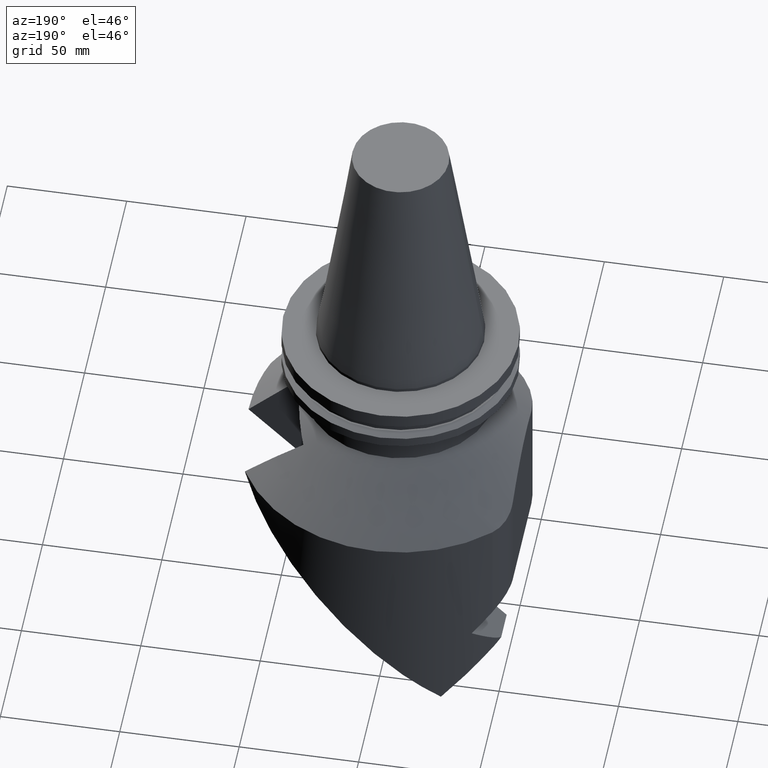
[diagram: clean part render]
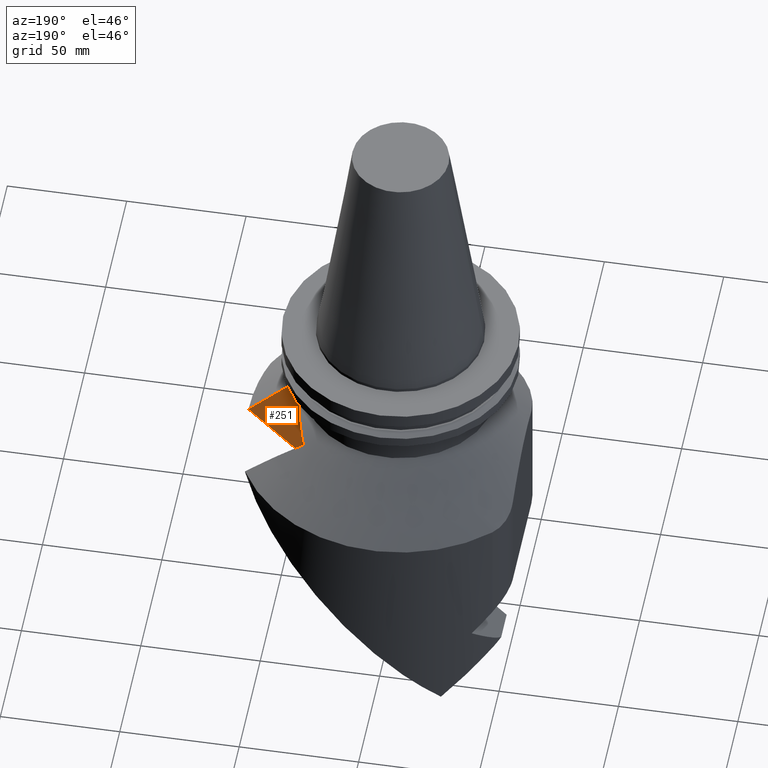
[diagram: same view with one face highlighted and labeled with its STEP entity id]
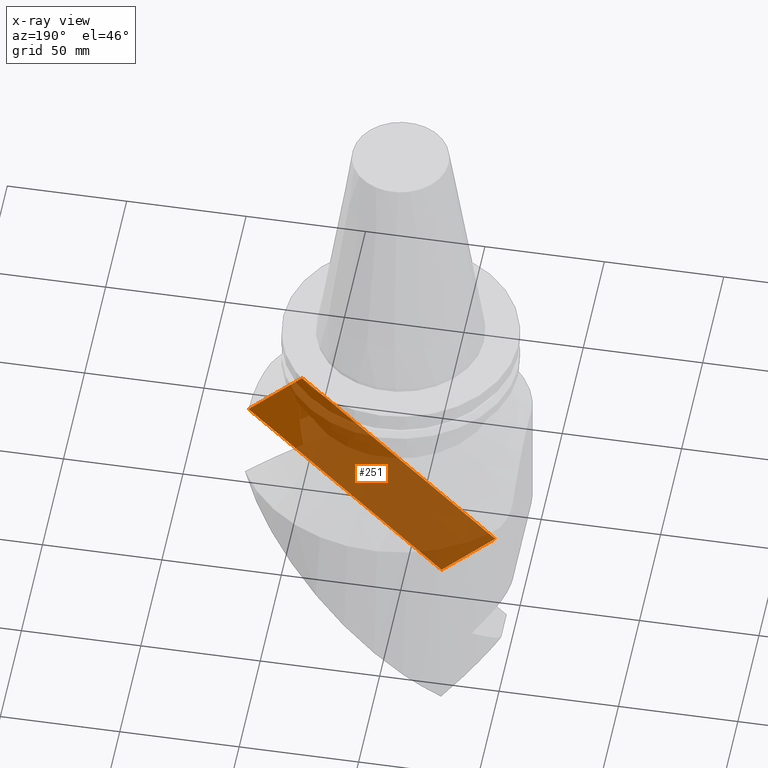
[diagram: x-ray of the same camera — body ghosted, the highlighted face saturated]
A machine part, auxiliary view. The second image highlights one B-rep face of the part: STEP entity #251.
The next image is the same camera in x-ray: the body ghosted, the highlighted face saturated — about 88% of this face is hidden behind the body in this view.
In plain terms, the highlighted planar face has unit normal (-0, -1, -0).
Its self-contained STEP definition (entity closure, byte-faithful):
#210=EDGE_CURVE('Unnamed[1]',#481,#482,#483,.T.);
#241=EDGE_CURVE('Unnamed[1]',#522,#481,#523,.T.);
#251=ADVANCED_FACE('Unnamed[1]',(#536),#537,.F.);
#258=EDGE_CURVE('Unnamed[1]',#482,#467,#546,.T.);
#298=EDGE_CURVE('Unnamed[1]',#467,#522,#595,.T.);
#467=VERTEX_POINT('',#832);
#481=VERTEX_POINT('',#873);
#482=VERTEX_POINT('',#874);
#483=LINE('',#875,#876);
#522=VERTEX_POINT('',#945);
#523=LINE('',#946,#947);
#536=FACE_OUTER_BOUND('',#964,.T.);
#537=PLANE('',#965);
#546=LINE('',#1002,#1003);
#595=LINE('',#1074,#1075);
#832=CARTESIAN_POINT('',(63.7328643762641,2.01514660745668E-012,-59.382886697079));
#873=CARTESIAN_POINT('',(-39.5626244073896,1.11549899580614E-013,-117.777094875389));
#874=CARTESIAN_POINT('',(-17.1119841047202,-2.35375645571135E-014,-140.227735178066));
#875=CARTESIAN_POINT('',(-31.6524539803849,9.62666741070877E-014,-125.687265302397));
#876=VECTOR('',#1282,1.0);
#945=CARTESIAN_POINT('',(41.2822240735932,-4.63143791642435E-013,-36.9322463944066));
#946=CARTESIAN_POINT('',(15.0260191002105,-2.76498932542826E-013,-63.1884513677893));
#947=VECTOR('',#1317,1.0);
#964=EDGE_LOOP('',(#1331,#1332,#1333,#1334));
#965=AXIS2_PLACEMENT_3D('',#1335,#1336,#1337);
#1002=CARTESIAN_POINT('',(7.10624934293264,-1.03984675197482E-013,-116.009501730413));
#1003=VECTOR('',#1344,1.0);
#1074=CARTESIAN_POINT('',(53.7499999999975,-4.87232758169147E-013,-49.4000223208117));
#1075=VECTOR('',#1407,1.0);
#1282=DIRECTION('',(0.707106781186443,-1.3661996881683E-015,-0.707106781186652));
#1317=DIRECTION('',(-0.707106781186547,5.02653927621049E-015,-0.707106781186548));
#1331=ORIENTED_EDGE('',*,*,#210,.F.);
#1332=ORIENTED_EDGE('',*,*,#241,.F.);
#1333=ORIENTED_EDGE('',*,*,#298,.F.);
#1334=ORIENTED_EDGE('',*,*,#258,.F.);
#1335=CARTESIAN_POINT('',(-3.7946405910103,-2.6494608836266E-014,-126.910391664356));
#1336=DIRECTION('',(-4.52034907206823E-015,-1.0,-2.58825094414968E-015));
#1337=DIRECTION('',(0.707106781186547,-5.02653927621049E-015,0.707106781186548));
#1344=DIRECTION('',(0.707106781186551,-5.0265392762105E-015,0.707106781186544));
#1407=DIRECTION('',(-0.707106781186525,1.36619968816888E-015,0.70710678118657));